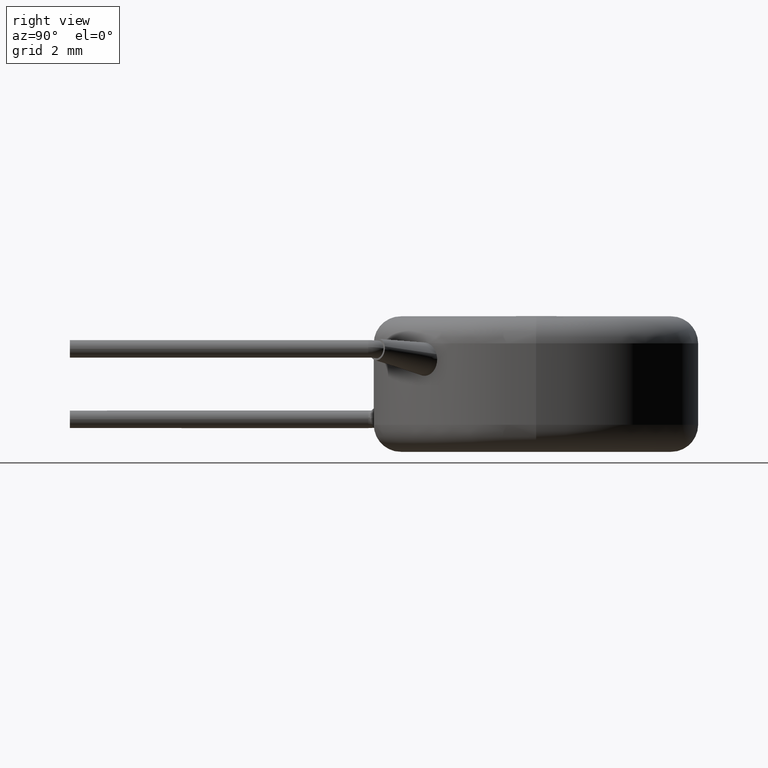
[diagram: clean part render]
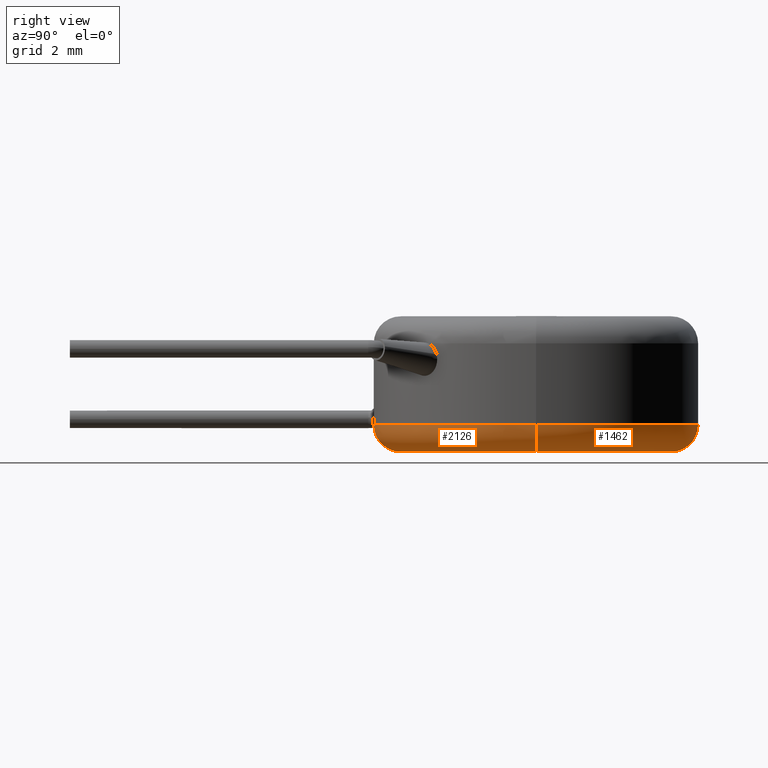
[diagram: same view with one multi-face feature highlighted, each face labeled with its STEP entity id]
A machine part, right view. The highlighted faces form ONE feature: a constant-radius fillet chain: 2 tangent blend faces with common blend radius 1 mm. The faces share edges in the B-rep.
Their STEP definitions:
[1] entity #2126 (Torus):
#37 = DIRECTION ( 'NONE',  ( 0.0000000000000000000, 0.0000000000000000000, -1.000000000000000000 ) ) ;
#128 = DIRECTION ( 'NONE',  ( 1.224646799147353200E-016, 1.000000000000000000, -0.0000000000000000000 ) ) ;
#135 = CARTESIAN_POINT ( 'NONE',  ( -4.495631527411706700, -3.973574860216163800, 1.000000000000000000 ) ) ;
#152 = CARTESIAN_POINT ( 'NONE',  ( -4.408498333144609500, -4.072155797788321200, 0.9532152182516173700 ) ) ;
#159 = CARTESIAN_POINT ( 'NONE',  ( -5.000000000000000900, 6.123233995736767300E-016, 1.000000000000000000 ) ) ;
#235 = ORIENTED_EDGE ( 'NONE', *, *, #1828, .F. ) ;
#269 = AXIS2_PLACEMENT_3D ( 'NONE', #1806, #2731, #37 ) ;
#412 = VERTEX_POINT ( 'NONE', #2224 ) ;
#631 = CARTESIAN_POINT ( 'NONE',  ( 0.0000000000000000000, 0.0000000000000000000, 1.000000000000000000 ) ) ;
#709 = CARTESIAN_POINT ( 'NONE',  ( 0.0000000000000000000, 0.0000000000000000000, 1.000000000000000000 ) ) ;
#774 = ORIENTED_EDGE ( 'NONE', *, *, #1422, .T. ) ;
#783 = CARTESIAN_POINT ( 'NONE',  ( -5.000000000000000900, 6.735557395310443000E-016, 0.0000000000000000000 ) ) ;
#950 = CIRCLE ( 'NONE', #3461, 1.000000000000000000 ) ;
#992 = VERTEX_POINT ( 'NONE', #783 ) ;
#1040 = AXIS2_PLACEMENT_3D ( 'NONE', #631, #3075, #1615 ) ;
#1178 = TOROIDAL_SURFACE ( 'NONE', #1040, 5.000000000000000900, 1.000000000000000000 ) ;
#1230 = B_SPLINE_CURVE_WITH_KNOTS ( 'NONE', 3,
 ( #1587, #3063, #152, #135 ),
 .UNSPECIFIED., .F., .F.,
 ( 4, 4 ),
 ( 5.821984838961332400E-007, 0.0004136736367881137000 ),
 .UNSPECIFIED. ) ;
#1321 = CIRCLE ( 'NONE', #2528, 6.000000000000000900 ) ;
#1421 = DIRECTION ( 'NONE',  ( 1.000000000000000000, 0.0000000000000000000, 0.0000000000000000000 ) ) ;
#1422 = EDGE_CURVE ( 'NONE', #3601, #1790, #1230, .T. ) ;
#1587 = CARTESIAN_POINT ( 'NONE',  ( -4.216137350047282500, -4.268979485255977500, 0.9999999999994455500 ) ) ;
#1615 = DIRECTION ( 'NONE',  ( 1.000000000000000000, 0.0000000000000000000, 0.0000000000000000000 ) ) ;
#1671 = CIRCLE ( 'NONE', #269, 1.000000000000000000 ) ;
#1790 = VERTEX_POINT ( 'NONE', #1842 ) ;
#1806 = CARTESIAN_POINT ( 'NONE',  ( 5.000000000000000900, 0.0000000000000000000, 1.000000000000000000 ) ) ;
#1828 = EDGE_CURVE ( 'NONE', #412, #1790, #3467, .T. ) ;
#1842 = CARTESIAN_POINT ( 'NONE',  ( -4.495631527411706700, -3.973574860216163800, 1.000000000000000000 ) ) ;
#1901 = CARTESIAN_POINT ( 'NONE',  ( 5.000000000000000900, 0.0000000000000000000, 0.0000000000000000000 ) ) ;
#1924 = ORIENTED_EDGE ( 'NONE', *, *, #2682, .F. ) ;
#1977 = DIRECTION ( 'NONE',  ( 0.0000000000000000000, 0.0000000000000000000, 1.000000000000000000 ) ) ;
#2126 = ADVANCED_FACE ( 'NONE', ( #3278 ), #1178, .T. ) ;
#2165 = VERTEX_POINT ( 'NONE', #1901 ) ;
#2194 = EDGE_CURVE ( 'NONE', #992, #412, #950, .T. ) ;
#2208 = AXIS2_PLACEMENT_3D ( 'NONE', #709, #3031, #3048 ) ;
#2224 = CARTESIAN_POINT ( 'NONE',  ( -6.000000000000000900, 0.0000000000000000000, 1.000000000000000000 ) ) ;
#2257 = CIRCLE ( 'NONE', #3203, 5.000000000000000900 ) ;
#2268 = CARTESIAN_POINT ( 'NONE',  ( 0.0000000000000000000, 0.0000000000000000000, 1.000000000000000000 ) ) ;
#2289 = DIRECTION ( 'NONE',  ( 1.000000000000000000, 0.0000000000000000000, 0.0000000000000000000 ) ) ;
#2509 = CARTESIAN_POINT ( 'NONE',  ( 6.000000000000000900, 7.347880794884120700E-016, 1.000000000000000000 ) ) ;
#2528 = AXIS2_PLACEMENT_3D ( 'NONE', #2268, #1977, #1421 ) ;
#2568 = DIRECTION ( 'NONE',  ( -0.0000000000000000000, -0.0000000000000000000, -1.000000000000000000 ) ) ;
#2682 = EDGE_CURVE ( 'NONE', #2165, #992, #2257, .T. ) ;
#2731 = DIRECTION ( 'NONE',  ( 0.0000000000000000000, -1.000000000000000000, 0.0000000000000000000 ) ) ;
#2824 = EDGE_CURVE ( 'NONE', #3601, #3204, #1321, .T. ) ;
#2890 = ORIENTED_EDGE ( 'NONE', *, *, #2952, .T. ) ;
#2921 = ORIENTED_EDGE ( 'NONE', *, *, #2824, .F. ) ;
#2952 = EDGE_CURVE ( 'NONE', #2165, #3204, #1671, .T. ) ;
#2956 = CARTESIAN_POINT ( 'NONE',  ( -4.216137350047282500, -4.268979485255977500, 0.9999999999994455500 ) ) ;
#3031 = DIRECTION ( 'NONE',  ( 0.0000000000000000000, 0.0000000000000000000, 1.000000000000000000 ) ) ;
#3048 = DIRECTION ( 'NONE',  ( 1.000000000000000000, 0.0000000000000000000, 0.0000000000000000000 ) ) ;
#3063 = CARTESIAN_POINT ( 'NONE',  ( -4.309665570919974300, -4.176608972193792900, 0.9527664966425983800 ) ) ;
#3075 = DIRECTION ( 'NONE',  ( 0.0000000000000000000, 0.0000000000000000000, 1.000000000000000000 ) ) ;
#3113 = DIRECTION ( 'NONE',  ( -1.000000000000000000, 1.224646799147353500E-016, 0.0000000000000000000 ) ) ;
#3166 = CARTESIAN_POINT ( 'NONE',  ( 0.0000000000000000000, 0.0000000000000000000, 0.0000000000000000000 ) ) ;
#3203 = AXIS2_PLACEMENT_3D ( 'NONE', #3166, #2568, #2289 ) ;
#3204 = VERTEX_POINT ( 'NONE', #2509 ) ;
#3278 = FACE_OUTER_BOUND ( 'NONE', #3516, .T. ) ;
#3381 = ORIENTED_EDGE ( 'NONE', *, *, #2194, .F. ) ;
#3461 = AXIS2_PLACEMENT_3D ( 'NONE', #159, #128, #3113 ) ;
#3467 = CIRCLE ( 'NONE', #2208, 6.000000000000000900 ) ;
#3516 = EDGE_LOOP ( 'NONE', ( #3381, #1924, #2890, #2921, #774, #235 ) ) ;
#3601 = VERTEX_POINT ( 'NONE', #2956 ) ;
[2] entity #1462 (Torus):
#37 = DIRECTION ( 'NONE',  ( 0.0000000000000000000, 0.0000000000000000000, -1.000000000000000000 ) ) ;
#128 = DIRECTION ( 'NONE',  ( 1.224646799147353200E-016, 1.000000000000000000, -0.0000000000000000000 ) ) ;
#159 = CARTESIAN_POINT ( 'NONE',  ( -5.000000000000000900, 6.123233995736767300E-016, 1.000000000000000000 ) ) ;
#219 = ORIENTED_EDGE ( 'NONE', *, *, #348, .F. ) ;
#269 = AXIS2_PLACEMENT_3D ( 'NONE', #1806, #2731, #37 ) ;
#348 = EDGE_CURVE ( 'NONE', #3204, #412, #393, .T. ) ;
#393 = CIRCLE ( 'NONE', #3376, 6.000000000000000900 ) ;
#412 = VERTEX_POINT ( 'NONE', #2224 ) ;
#783 = CARTESIAN_POINT ( 'NONE',  ( -5.000000000000000900, 6.735557395310443000E-016, 0.0000000000000000000 ) ) ;
#872 = EDGE_CURVE ( 'NONE', #992, #2165, #2861, .T. ) ;
#950 = CIRCLE ( 'NONE', #3461, 1.000000000000000000 ) ;
#992 = VERTEX_POINT ( 'NONE', #783 ) ;
#1066 = AXIS2_PLACEMENT_3D ( 'NONE', #1939, #1916, #3680 ) ;
#1229 = ORIENTED_EDGE ( 'NONE', *, *, #872, .F. ) ;
#1237 = AXIS2_PLACEMENT_3D ( 'NONE', #2819, #1621, #1378 ) ;
#1359 = DIRECTION ( 'NONE',  ( 0.0000000000000000000, 0.0000000000000000000, 1.000000000000000000 ) ) ;
#1378 = DIRECTION ( 'NONE',  ( 1.000000000000000000, 0.0000000000000000000, 0.0000000000000000000 ) ) ;
#1462 = ADVANCED_FACE ( 'NONE', ( #3100 ), #3019, .T. ) ;
#1621 = DIRECTION ( 'NONE',  ( -0.0000000000000000000, -0.0000000000000000000, -1.000000000000000000 ) ) ;
#1671 = CIRCLE ( 'NONE', #269, 1.000000000000000000 ) ;
#1806 = CARTESIAN_POINT ( 'NONE',  ( 5.000000000000000900, 0.0000000000000000000, 1.000000000000000000 ) ) ;
#1901 = CARTESIAN_POINT ( 'NONE',  ( 5.000000000000000900, 0.0000000000000000000, 0.0000000000000000000 ) ) ;
#1916 = DIRECTION ( 'NONE',  ( 0.0000000000000000000, 0.0000000000000000000, 1.000000000000000000 ) ) ;
#1939 = CARTESIAN_POINT ( 'NONE',  ( 0.0000000000000000000, 0.0000000000000000000, 1.000000000000000000 ) ) ;
#2165 = VERTEX_POINT ( 'NONE', #1901 ) ;
#2194 = EDGE_CURVE ( 'NONE', #992, #412, #950, .T. ) ;
#2224 = CARTESIAN_POINT ( 'NONE',  ( -6.000000000000000900, 0.0000000000000000000, 1.000000000000000000 ) ) ;
#2509 = CARTESIAN_POINT ( 'NONE',  ( 6.000000000000000900, 7.347880794884120700E-016, 1.000000000000000000 ) ) ;
#2513 = EDGE_LOOP ( 'NONE', ( #1229, #3688, #219, #3645 ) ) ;
#2731 = DIRECTION ( 'NONE',  ( 0.0000000000000000000, -1.000000000000000000, 0.0000000000000000000 ) ) ;
#2819 = CARTESIAN_POINT ( 'NONE',  ( 0.0000000000000000000, 0.0000000000000000000, 0.0000000000000000000 ) ) ;
#2861 = CIRCLE ( 'NONE', #1237, 5.000000000000000900 ) ;
#2952 = EDGE_CURVE ( 'NONE', #2165, #3204, #1671, .T. ) ;
#3019 = TOROIDAL_SURFACE ( 'NONE', #1066, 5.000000000000000900, 1.000000000000000000 ) ;
#3052 = CARTESIAN_POINT ( 'NONE',  ( 0.0000000000000000000, 0.0000000000000000000, 1.000000000000000000 ) ) ;
#3100 = FACE_OUTER_BOUND ( 'NONE', #2513, .T. ) ;
#3113 = DIRECTION ( 'NONE',  ( -1.000000000000000000, 1.224646799147353500E-016, 0.0000000000000000000 ) ) ;
#3204 = VERTEX_POINT ( 'NONE', #2509 ) ;
#3376 = AXIS2_PLACEMENT_3D ( 'NONE', #3052, #1359, #3388 ) ;
#3388 = DIRECTION ( 'NONE',  ( 1.000000000000000000, 0.0000000000000000000, 0.0000000000000000000 ) ) ;
#3461 = AXIS2_PLACEMENT_3D ( 'NONE', #159, #128, #3113 ) ;
#3645 = ORIENTED_EDGE ( 'NONE', *, *, #2952, .F. ) ;
#3680 = DIRECTION ( 'NONE',  ( 1.000000000000000000, 0.0000000000000000000, 0.0000000000000000000 ) ) ;
#3688 = ORIENTED_EDGE ( 'NONE', *, *, #2194, .T. ) ;